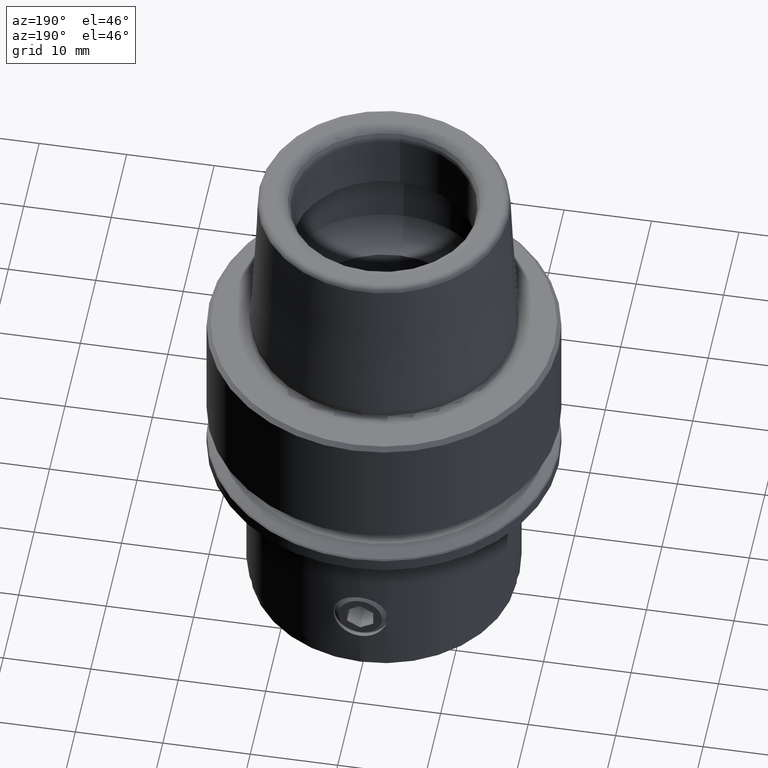
[diagram: clean part render]
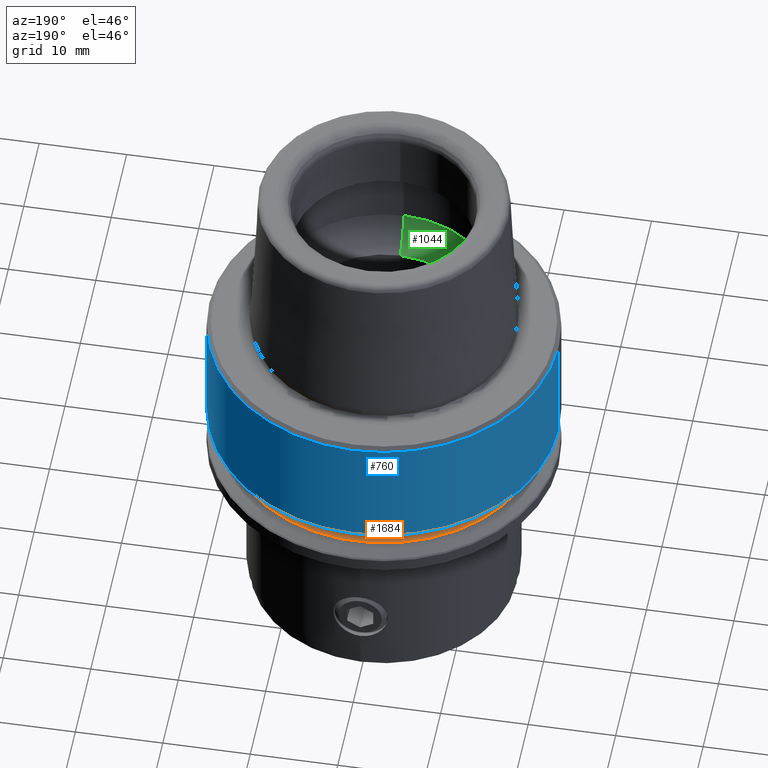
[diagram: same view with three faces highlighted in distinct colors, each labeled with its STEP entity id]
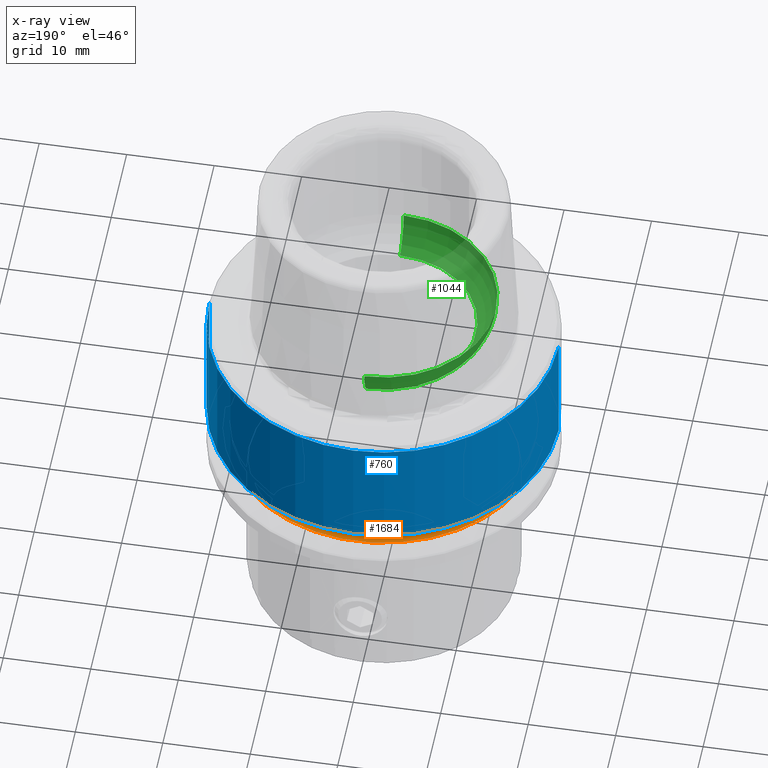
[diagram: x-ray of the same camera — body ghosted, the three highlighted faces saturated]
A machine part, auxiliary view with three faces highlighted in distinct colors.
The next image is the same camera in x-ray (body ghosted, the three faces saturated) — at least one of them is partly hidden behind the body in this view.
Their STEP definitions:

[orange] entity #1684 — the highlighted toroidal blend (fillet) surface has major radius 18.125 mm and minor (blend) radius 0.75 mm.
#1096=VERTEX_POINT('NONE',#2534);
#1100=EDGE_CURVE('NONE',#1096,#1554,#2538,.T.);
#1336=EDGE_CURVE('NONE',#1554,#1392,#2812,.T.);
#1392=VERTEX_POINT('NONE',#2869);
#1410=VERTEX_POINT('NONE',#2887);
#1554=VERTEX_POINT('NONE',#3048);
#1684=ADVANCED_FACE('NONE',(#3191),#3192,.F.);
#1704=EDGE_CURVE('NONE',#1096,#1410,#3214,.T.);
#1998=EDGE_CURVE('NONE',#1410,#1392,#3539,.T.);
#2534=CARTESIAN_POINT('',(17.375,-2.12782381351853E-015,-16.2875));
#2538=CIRCLE('',#4277,0.750000000000001);
#2812=CIRCLE('',#4718,18.125);
#2869=CARTESIAN_POINT('',(-18.125,0.0,-17.0375));
#2887=CARTESIAN_POINT('',(-17.375,0.0,-16.2875));
#3048=CARTESIAN_POINT('',(18.125,-2.21967232345458E-015,-17.0375));
#3191=FACE_OUTER_BOUND('',#5356,.T.);
#3192=TOROIDAL_SURFACE('',#5357,18.125,0.749999999999999);
#3214=CIRCLE('',#5388,17.375);
#3539=CIRCLE('',#5841,0.750000000000001);
#4277=AXIS2_PLACEMENT_3D('',#6520,#6521,#6522);
#4718=AXIS2_PLACEMENT_3D('',#6918,#6919,#6920);
#5356=EDGE_LOOP('',(#7349,#7350,#7351,#7352));
#5357=AXIS2_PLACEMENT_3D('',#7353,#7354,#7355);
#5388=AXIS2_PLACEMENT_3D('',#7387,#7388,#7389);
#5841=AXIS2_PLACEMENT_3D('',#7797,#7798,#7799);
#6520=CARTESIAN_POINT('',(18.125,-2.21967232345458E-015,-16.2875));
#6521=DIRECTION('',(-1.22464679914735E-016,-1.0,0.0));
#6522=DIRECTION('',(-1.0,1.22464679914735E-016,-0.0));
#6918=CARTESIAN_POINT('',(0.0,0.0,-17.0375));
#6919=DIRECTION('',(0.0,0.0,1.0));
#6920=DIRECTION('',(-1.0,0.0,0.0));
#7349=ORIENTED_EDGE('',*,*,#1704,.F.);
#7350=ORIENTED_EDGE('',*,*,#1100,.T.);
#7351=ORIENTED_EDGE('',*,*,#1336,.T.);
#7352=ORIENTED_EDGE('',*,*,#1998,.F.);
#7353=CARTESIAN_POINT('',(0.0,0.0,-16.2875));
#7354=DIRECTION('',(0.0,0.0,1.0));
#7355=DIRECTION('',(-1.0,0.0,0.0));
#7387=CARTESIAN_POINT('',(0.0,0.0,-16.2875));
#7388=DIRECTION('',(0.0,0.0,1.0));
#7389=DIRECTION('',(-1.0,0.0,0.0));
#7797=CARTESIAN_POINT('',(-18.125,0.0,-16.2875));
#7798=DIRECTION('',(0.0,1.0,-0.0));
#7799=DIRECTION('',(1.0,0.0,0.0));

[blue] entity #760 — the highlighted cylindrical surface (partial cylindrical patch) has radius 19.975 mm, axis along (-0, -0, 1).
#744=EDGE_CURVE('NONE',#1086,#1394,#2141,.T.);
#756=EDGE_CURVE('NONE',#790,#822,#2154,.T.);
#760=ADVANCED_FACE('NONE',(#2158),#2159,.T.);
#790=VERTEX_POINT('NONE',#2190);
#822=VERTEX_POINT('NONE',#2225);
#1086=VERTEX_POINT('NONE',#2523);
#1292=EDGE_CURVE('NONE',#822,#2054,#2760,.T.);
#1378=EDGE_CURVE('NONE',#1848,#790,#2855,.T.);
#1394=VERTEX_POINT('NONE',#2871);
#1528=EDGE_CURVE('NONE',#1848,#1086,#3020,.T.);
#1696=EDGE_CURVE('NONE',#1394,#2054,#3205,.T.);
#1848=VERTEX_POINT('NONE',#3375);
#2054=VERTEX_POINT('NONE',#3602);
#2141=CIRCLE('',#3731,19.975);
#2154=CIRCLE('',#3747,19.975);
#2158=FACE_OUTER_BOUND('',#3753,.T.);
#2159=CYLINDRICAL_SURFACE('',#3754,19.975);
#2190=CARTESIAN_POINT('',(0.0,19.975,-13.9158765982147));
#2225=CARTESIAN_POINT('',(-19.975,0.0,-13.9158765982147));
#2523=CARTESIAN_POINT('',(19.975,-2.44623198129684E-015,-0.479999999999992));
#2760=LINE('',#4645,#4646);
#2855=CIRCLE('',#4815,19.975);
#2871=CARTESIAN_POINT('',(-2.44623198129684E-015,19.975,-0.479999999999992));
#3020=LINE('',#5061,#5062);
#3205=CIRCLE('',#5375,19.975);
#3375=CARTESIAN_POINT('',(19.975,-2.44623198129684E-015,-13.9158765982147));
#3602=CARTESIAN_POINT('',(-19.975,0.0,-0.479999999999992));
#3731=AXIS2_PLACEMENT_3D('',#6024,#6025,#6026);
#3747=AXIS2_PLACEMENT_3D('',#6034,#6035,#6036);
#3753=EDGE_LOOP('',(#6039,#6040,#6041,#6042,#6043,#6044));
#3754=AXIS2_PLACEMENT_3D('',#6045,#6046,#6047);
#4645=CARTESIAN_POINT('',(-19.975,0.0,0.0));
#4646=VECTOR('',#6845,1000.0);
#4815=AXIS2_PLACEMENT_3D('',#6961,#6962,#6963);
#5061=CARTESIAN_POINT('',(19.975,-2.44623198129684E-015,0.0));
#5062=VECTOR('',#7152,1000.0);
#5375=AXIS2_PLACEMENT_3D('',#7371,#7372,#7373);
#6024=CARTESIAN_POINT('',(0.0,3.72279363876998E-016,-0.479999999999992));
#6025=DIRECTION('',(0.0,1.08555912138724E-017,1.0));
#6026=DIRECTION('',(0.0,-1.0,1.08555912138724E-017));
#6034=CARTESIAN_POINT('',(0.0,2.27380766162246E-016,-13.9158765982147));
#6035=DIRECTION('',(0.0,0.0,1.0));
#6036=DIRECTION('',(0.0,1.0,-0.0));
#6039=ORIENTED_EDGE('',*,*,#1528,.F.);
#6040=ORIENTED_EDGE('',*,*,#1378,.T.);
#6041=ORIENTED_EDGE('',*,*,#756,.T.);
#6042=ORIENTED_EDGE('',*,*,#1292,.T.);
#6043=ORIENTED_EDGE('',*,*,#1696,.F.);
#6044=ORIENTED_EDGE('',*,*,#744,.F.);
#6045=CARTESIAN_POINT('',(0.0,0.0,0.0));
#6046=DIRECTION('',(-0.0,-0.0,1.0));
#6047=DIRECTION('',(-1.0,0.0,0.0));
#6845=DIRECTION('',(0.0,0.0,1.0));
#6961=CARTESIAN_POINT('',(0.0,2.27380766162246E-016,-13.9158765982147));
#6962=DIRECTION('',(0.0,0.0,1.0));
#6963=DIRECTION('',(0.0,1.0,-0.0));
#7152=DIRECTION('',(0.0,0.0,1.0));
#7371=CARTESIAN_POINT('',(0.0,3.72279363876998E-016,-0.479999999999992));
#7372=DIRECTION('',(0.0,1.08555912138724E-017,1.0));
#7373=DIRECTION('',(0.0,-1.0,1.08555912138724E-017));

[green] entity #1044 — the highlighted toroidal blend (fillet) surface has major radius 7.78 mm and minor (blend) radius 5 mm.
#818=VERTEX_POINT('NONE',#2221);
#842=VERTEX_POINT('NONE',#2246);
#1044=ADVANCED_FACE('NONE',(#2472),#2473,.F.);
#1242=EDGE_CURVE('NONE',#1918,#818,#2703,.T.);
#1280=VERTEX_POINT('NONE',#2747);
#1760=EDGE_CURVE('NONE',#1918,#842,#3280,.T.);
#1798=EDGE_CURVE('NONE',#1280,#842,#3318,.T.);
#1918=VERTEX_POINT('NONE',#3453);
#2006=EDGE_CURVE('NONE',#818,#1280,#3547,.T.);
#2221=CARTESIAN_POINT('',(-1.56509860931032E-015,12.78,4.2317363618478));
#2246=CARTESIAN_POINT('',(0.0,-10.521,0.0499999999999942));
#2472=FACE_OUTER_BOUND('',#4169,.T.);
#2473=TOROIDAL_SURFACE('',#4170,7.78,5.0);
#2703=CIRCLE('',#4576,12.78);
#2747=CARTESIAN_POINT('',(-1.42677475334662E-015,10.521,0.0499999999999913));
#3280=CIRCLE('',#5466,5.0);
#3318=CIRCLE('',#5519,10.521);
#3453=CARTESIAN_POINT('',(0.0,-12.78,4.2317363618478));
#3547=CIRCLE('',#5851,5.0);
#4169=EDGE_LOOP('',(#6415,#6416,#6417,#6418));
#4170=AXIS2_PLACEMENT_3D('',#6419,#6420,#6421);
#4576=AXIS2_PLACEMENT_3D('',#6757,#6758,#6759);
#5466=AXIS2_PLACEMENT_3D('',#7496,#7497,#7498);
#5519=AXIS2_PLACEMENT_3D('',#7521,#7522,#7523);
#5851=AXIS2_PLACEMENT_3D('',#7803,#7804,#7805);
#6415=ORIENTED_EDGE('',*,*,#2006,.F.);
#6416=ORIENTED_EDGE('',*,*,#1242,.F.);
#6417=ORIENTED_EDGE('',*,*,#1760,.T.);
#6418=ORIENTED_EDGE('',*,*,#1798,.F.);
#6419=CARTESIAN_POINT('',(0.0,5.20417042793042E-015,4.2317363618478));
#6420=DIRECTION('',(0.0,-1.3807492404664E-016,-1.0));
#6421=DIRECTION('',(0.0,-1.0,1.3807492404664E-016));
#6757=CARTESIAN_POINT('',(0.0,5.41691901837992E-015,4.2317363618478));
#6758=DIRECTION('',(0.0,-1.35737361187544E-016,-1.0));
#6759=DIRECTION('',(0.0,-1.0,1.35737361187544E-016));
#7496=CARTESIAN_POINT('',(0.0,-7.78,4.2317363618478));
#7497=DIRECTION('',(1.0,0.0,0.0));
#7498=DIRECTION('',(0.0,-0.0,1.0));
#7521=CARTESIAN_POINT('',(0.0,4.62677749738521E-015,0.0499999999999928));
#7522=DIRECTION('',(0.0,1.37831043218265E-016,1.0));
#7523=DIRECTION('',(0.0,1.0,-1.37831043218265E-016));
#7803=CARTESIAN_POINT('',(-9.52775209736642E-016,7.78000000000001,4.2317363618478));
#7804=DIRECTION('',(-1.0,-1.22464679914735E-016,1.69093013776231E-032));
#7805=DIRECTION('',(-1.22464679914735E-016,1.0,-0.0));